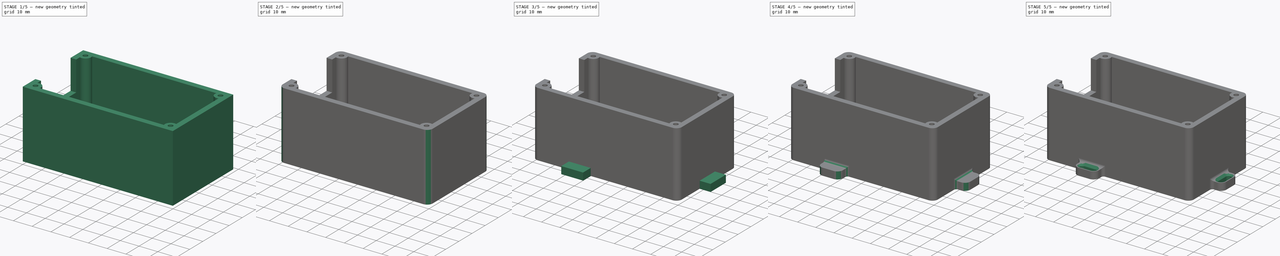
[diagram: build sequence overview — one tinted view per stage of 5, left to right]
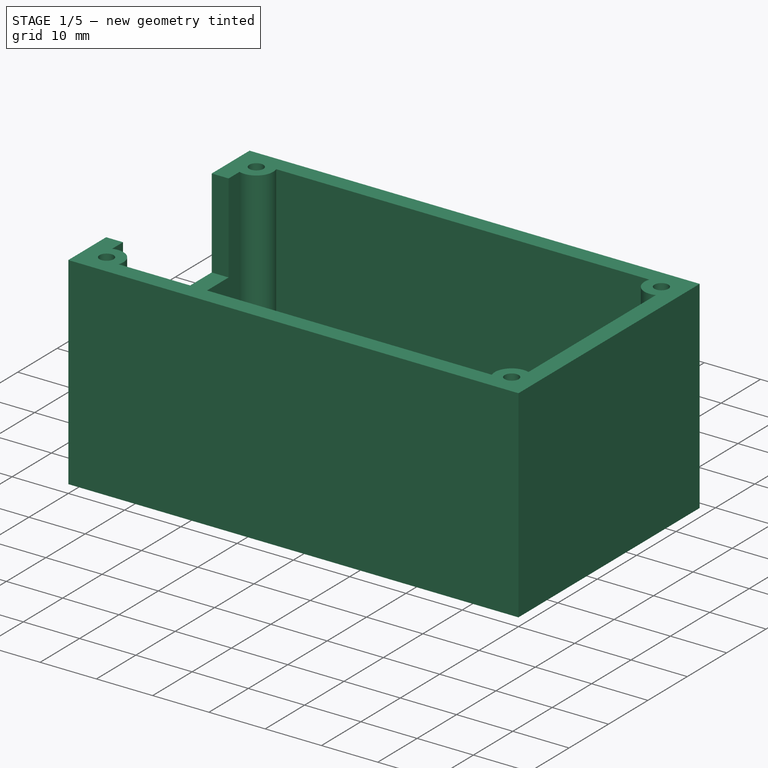
[diagram: stage 1 of 5 — iso view after this stage's code; geometry added in this stage tinted green]
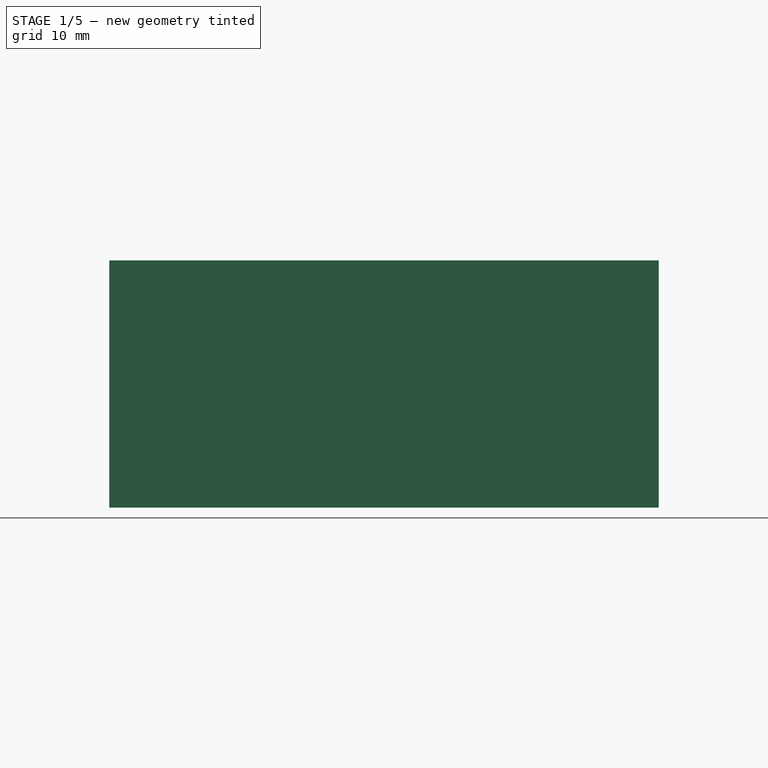
[diagram: stage 1 of 5 — front view after this stage's code; geometry added in this stage tinted green]
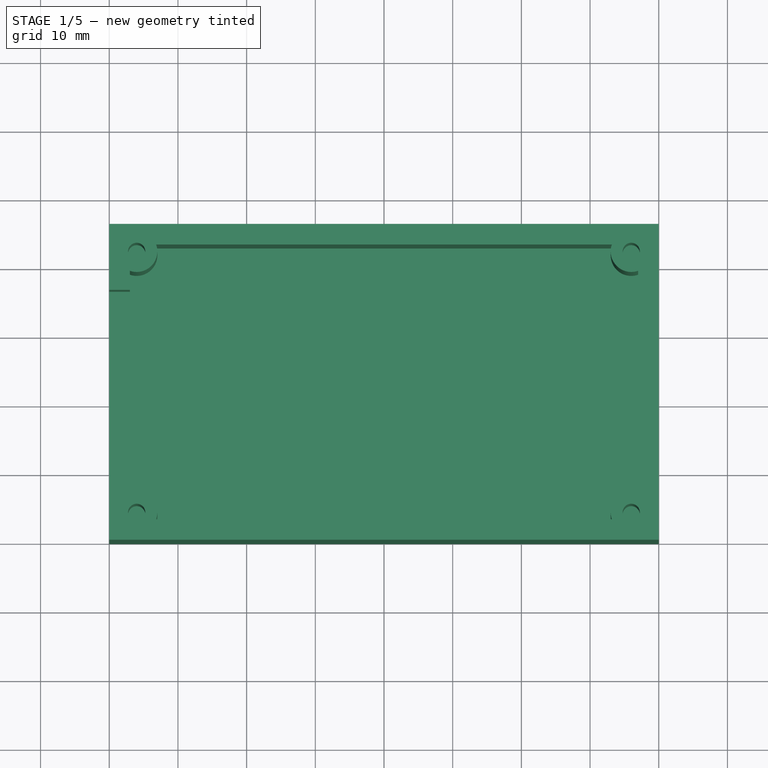
[diagram: stage 1 of 5 — top view after this stage's code; geometry added in this stage tinted green]
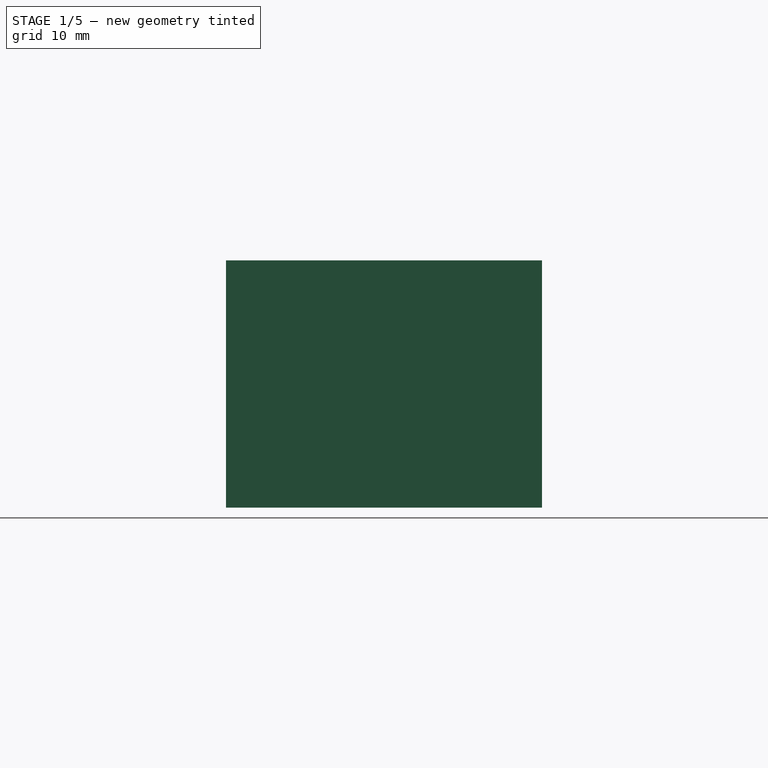
[diagram: stage 1 of 5 — right view after this stage's code; geometry added in this stage tinted green]
FCSTD DOCUMENT  (FreeCAD 0.16R6712 (Git))
Label: gateway_case_botom_0.1
License: All rights reserved
LicenseURL: http://en.wikipedia.org/wiki/All_rights_reserved
objects: PartDesign::Fillet×12, Sketcher::SketchObject×9, PartDesign::Pad×5, PartDesign::Pocket×4, PartDesign::Chamfer×3
note: 42 computed .brp shape members not serialized (recipe doc carries the construction recipe); baked Part::Feature solids carry a one-line shape summary decoded from their .brp

FEATURE [Sketcher::SketchObject] Sketch
  sketch-geometry (4):
    g0: LineSegment StartX=0 StartY=0 StartZ=0 EndX=80 EndY=0 EndZ=0
    g1: LineSegment StartX=80 StartY=0 StartZ=0 EndX=80 EndY=46 EndZ=0
    g2: LineSegment StartX=80 StartY=46 StartZ=0 EndX=0 EndY=46 EndZ=0
    g3: LineSegment StartX=0 StartY=46 StartZ=0 EndX=0 EndY=0 EndZ=0
  constraints (11):
    c: Coincident(g0,g1)
    c: Coincident(g1,g2)
    c: Coincident(g2,g3)
    c: Coincident(g3,g0)
    c: Horizontal(g0)
    c: Horizontal(g2)
    c: Vertical(g1)
    c: Vertical(g3)
    c: Coincident(g0,g-1)
    c: DistanceX(g0,g0) = 80
    c: DistanceY(g3,g3) = 46
FEATURE [PartDesign::Pad] Pad
  Length = 36
  Length2 = 100
  Sketch = -> Sketch
  Type = 0
FEATURE [Sketcher::SketchObject] Sketch001
  Placement = pos=(0,0,36) rot=(0,0,1;0rad)
  Support = -> Pad [Face6]
  sketch-geometry (4):
    g0: LineSegment StartX=3 StartY=43 StartZ=0 EndX=77 EndY=43 EndZ=0
    g1: LineSegment StartX=77 StartY=43 StartZ=0 EndX=77 EndY=3 EndZ=0
    g2: LineSegment StartX=77 StartY=3 StartZ=0 EndX=3 EndY=3 EndZ=0
    g3: LineSegment StartX=3 StartY=3 StartZ=0 EndX=3 EndY=43 EndZ=0
  constraints (12):
    c: Coincident(g0,g1)
    c: Coincident(g1,g2)
    c: Coincident(g2,g3)
    c: Coincident(g3,g0)
    c: Horizontal(g0)
    c: Horizontal(g2)
    c: Vertical(g1)
    c: Vertical(g3)
    c: DistanceX(g-1,g2) = 3
    c: DistanceY(g-1,g2) = 3
    c: DistanceY(g3,g3) = 40
    c: DistanceX(g2,g2) = 74
FEATURE [PartDesign::Pocket] Pocket
  Length = 33
  Sketch = -> Sketch001
  Type = 0
FEATURE [Sketcher::SketchObject] Sketch002
  Placement = pos=(0,0,36) rot=(0,0,1;0rad)
  Support = -> Pocket [Face5]
  sketch-geometry (4):
    g0: LineSegment StartX=0 StartY=36.4 StartZ=0 EndX=3 EndY=36.4 EndZ=0
    g1: LineSegment StartX=3 StartY=36.4 StartZ=0 EndX=3 EndY=9.6 EndZ=0
    g2: LineSegment StartX=3 StartY=9.6 StartZ=0 EndX=0 EndY=9.6 EndZ=0
    g3: LineSegment StartX=0 StartY=9.6 StartZ=0 EndX=0 EndY=36.4 EndZ=0
  constraints (12):
    c: Coincident(g0,g1)
    c: Coincident(g1,g2)
    c: Coincident(g2,g3)
    c: Coincident(g3,g0)
    c: Horizontal(g0)
    c: Horizontal(g2)
    c: Vertical(g1)
    c: Vertical(g3)
    c: Tangent(g3,g-2)
    c: DistanceX(g2,g2) = 3
    c: DistanceY(g-1,g2) = 9.6
    c: DistanceY(g3,g3) = 26.8
FEATURE [PartDesign::Pocket] Pocket001
  Length = 15.9
  Sketch = -> Sketch002
  Type = 0
FEATURE [Sketcher::SketchObject] Sketch003
  Placement = pos=(0,0,3) rot=(0,0,1;0rad)
  Support = -> Pocket001 [Face14]
  sketch-geometry (4):
    g0: Circle CenterX=4 CenterY=42 CenterZ=0 NormalX=0 NormalY=0 NormalZ=1 Radius=3
    g1: Circle CenterX=4 CenterY=4 CenterZ=0 NormalX=0 NormalY=0 NormalZ=1 Radius=3
    g2: Circle CenterX=76 CenterY=4 CenterZ=0 NormalX=0 NormalY=0 NormalZ=1 Radius=3
    g3: Circle CenterX=76 CenterY=42 CenterZ=0 NormalX=0 NormalY=0 NormalZ=1 Radius=3
  constraints (12):
    c: Radius(g1) = 3
    c: Equal(g1,g2)
    c: Equal(g2,g3)
    c: Equal(g3,g0)
    c: DistanceX(g-1,g1) = 4
    c: DistanceY(g-1,g1) = 4
    c: DistanceY(g-1,g0) = 42
    c: DistanceY(g1,g2) = 0
    c: DistanceX(g1,g0) = 0
    c: DistanceX(g-1,g2) = 76
    c: DistanceX(g3,g2) = 0
    c: DistanceY(g3,g0) = 0
FEATURE [PartDesign::Pad] Pad001
  Length = 33
  Length2 = 100
  Sketch = -> Sketch003
  Type = 0
FEATURE [Sketcher::SketchObject] Sketch006
  Placement = pos=(0,0,36) rot=(0,0,1;0rad)
  Support = -> Pad001 [Face21]
  sketch-geometry (4):
    g0: Circle CenterX=4 CenterY=42 CenterZ=0 NormalX=0 NormalY=0 NormalZ=1 Radius=1.25
    g1: Circle CenterX=4 CenterY=4 CenterZ=0 NormalX=0 NormalY=0 NormalZ=1 Radius=1.25
    g2: Circle CenterX=76 CenterY=4 CenterZ=0 NormalX=0 NormalY=0 NormalZ=1 Radius=1.25
    g3: Circle CenterX=76 CenterY=42 CenterZ=0 NormalX=0 NormalY=0 NormalZ=1 Radius=1.25
  constraints (12):
    c: Radius(g0) = 1.25
    c: Equal(g0,g1)
    c: Equal(g1,g2)
    c: Equal(g2,g3)
    c: DistanceY(g-1,g1) = 4
    c: DistanceX(g-1,g1) = 4
    c: DistanceY(g1,g2) = 0
    c: DistanceX(g-1,g2) = 76
    c: DistanceX(g3,g2) = 0
    c: DistanceX(g1,g0) = 0
    c: DistanceY(g-1,g0) = 42
    c: DistanceY(g3,g0) = 0
FEATURE [PartDesign::Pocket] Pocket002
  Length = 20
  Sketch = -> Sketch006
  Type = 0
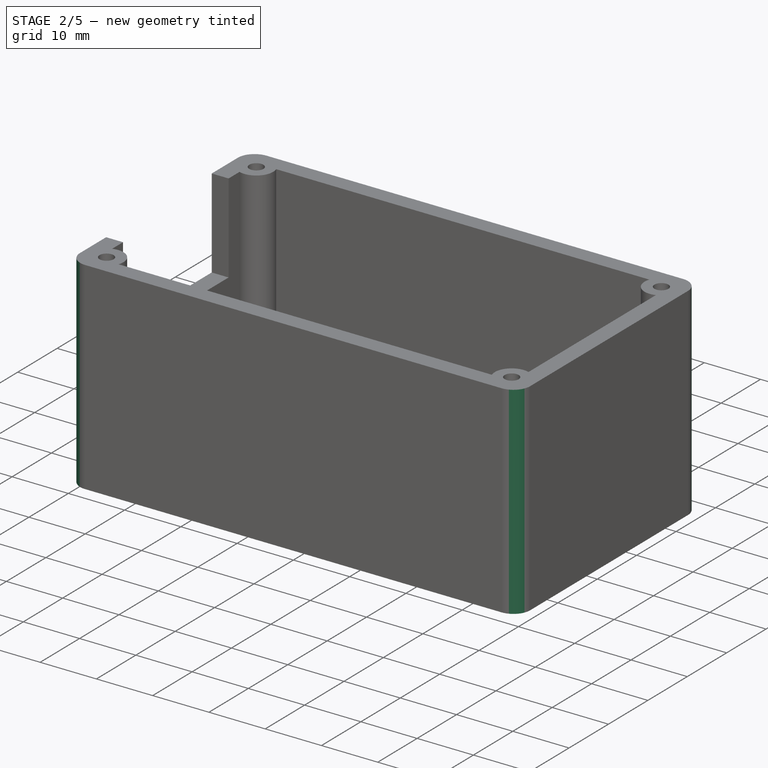
[diagram: stage 2 of 5 — iso view after this stage's code; geometry added in this stage tinted green]
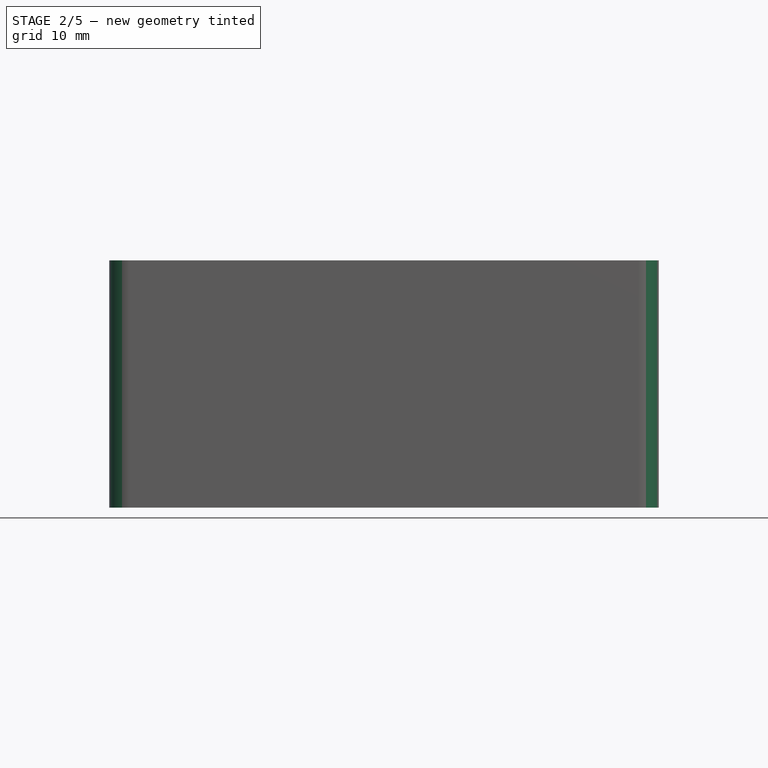
[diagram: stage 2 of 5 — front view after this stage's code; geometry added in this stage tinted green]
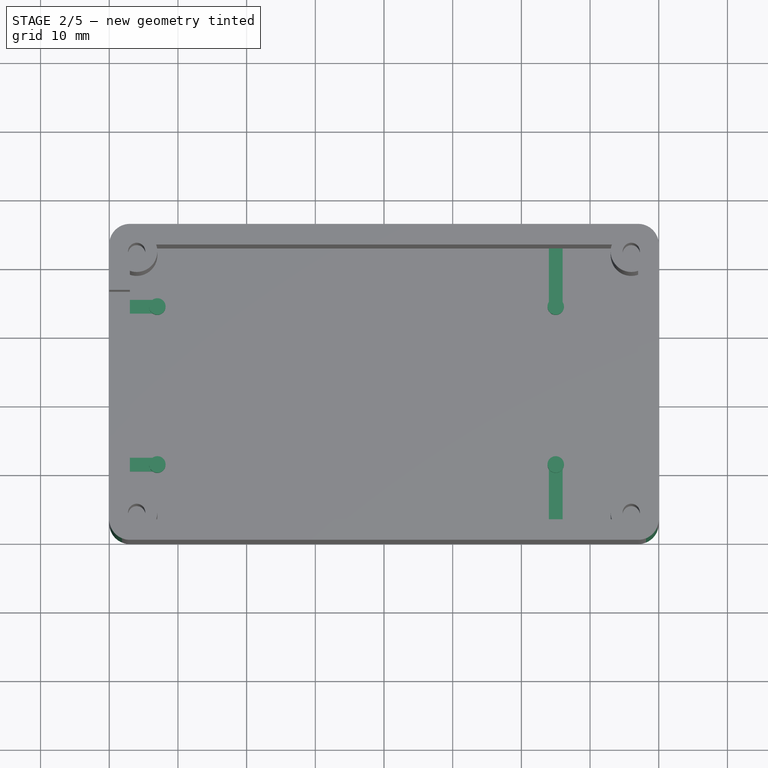
[diagram: stage 2 of 5 — top view after this stage's code; geometry added in this stage tinted green]
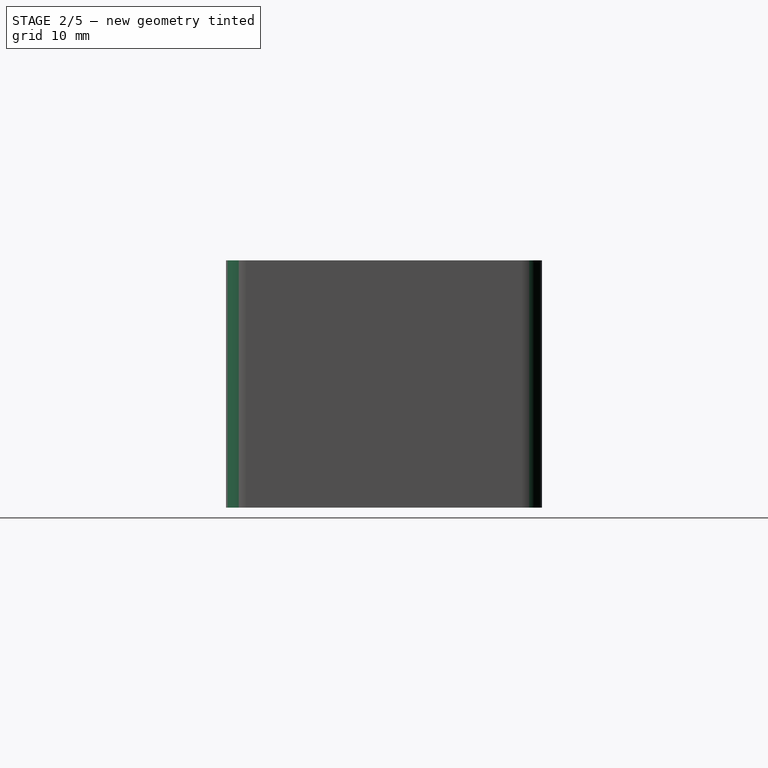
[diagram: stage 2 of 5 — right view after this stage's code; geometry added in this stage tinted green]
FEATURE [Sketcher::SketchObject] Sketch007
  Placement = pos=(0,0,3) rot=(0,0,1;0rad)
  Support = -> Pocket002 [Face19]
  sketch-geometry (4):
    g0: Circle CenterX=7 CenterY=11.5 CenterZ=0 NormalX=0 NormalY=0 NormalZ=1 Radius=1.2
    g1: Circle CenterX=7 CenterY=34.5 CenterZ=0 NormalX=0 NormalY=0 NormalZ=1 Radius=1.2
    g2: Circle CenterX=65 CenterY=34.5 CenterZ=0 NormalX=0 NormalY=0 NormalZ=1 Radius=1.2
    g3: Circle CenterX=65 CenterY=11.5 CenterZ=0 NormalX=0 NormalY=0 NormalZ=1 Radius=1.2
  constraints (12):
    c: Radius(g0) = 1.2
    c: Equal(g0,g1)
    c: Equal(g1,g2)
    c: Equal(g2,g3)
    c: DistanceX(g0,g3) = 58
    c: DistanceY(g0,g3) = 0
    c: DistanceX(g1,g0) = 0
    c: DistanceX(g0,g2) = 58
    c: DistanceY(g0,g1) = 23
    c: DistanceY(g1,g2) = 0
    c: DistanceY(g-1,g0) = 11.5
    c: DistanceX(g-1,g0) = 7
FEATURE [PartDesign::Pad] Pad002
  Length = 3
  Length2 = 100
  Sketch = -> Sketch007
  Type = 0
FEATURE [Sketcher::SketchObject] Sketch008
  Placement = pos=(0,0,3) rot=(0,0,1;0rad)
  Support = -> Pad002 [Face19]
  sketch-geometry (16):
    g0: LineSegment StartX=3 StartY=35.5 StartZ=0 EndX=6.5 EndY=35.5 EndZ=0
    g1: LineSegment StartX=6.5 StartY=35.5 StartZ=0 EndX=6.5 EndY=33.5 EndZ=0
    g2: LineSegment StartX=6.5 StartY=33.5 StartZ=0 EndX=3 EndY=33.5 EndZ=0
    g3: LineSegment StartX=3 StartY=33.5 StartZ=0 EndX=3 EndY=35.5 EndZ=0
    g4: LineSegment StartX=3 StartY=12.5 StartZ=0 EndX=6.5 EndY=12.5 EndZ=0
    g5: LineSegment StartX=6.5 StartY=12.5 StartZ=0 EndX=6.5 EndY=10.5 EndZ=0
    g6: LineSegment StartX=6.5 StartY=10.5 StartZ=0 EndX=3 EndY=10.5 EndZ=0
    g7: LineSegment StartX=3 StartY=10.5 StartZ=0 EndX=3 EndY=12.5 EndZ=0
    g8: LineSegment StartX=64 StartY=43 StartZ=0 EndX=66 EndY=43 EndZ=0
    g9: LineSegment StartX=66 StartY=43 StartZ=0 EndX=66 EndY=35 EndZ=0
    g10: LineSegment StartX=66 StartY=35 StartZ=0 EndX=64 EndY=35 EndZ=0
    g11: LineSegment StartX=64 StartY=35 StartZ=0 EndX=64 EndY=43 EndZ=0
    g12: LineSegment StartX=64 StartY=11 StartZ=0 EndX=66 EndY=11 EndZ=0
    g13: LineSegment StartX=66 StartY=11 StartZ=0 EndX=66 EndY=3 EndZ=0
    g14: LineSegment StartX=66 StartY=3 StartZ=0 EndX=64 EndY=3 EndZ=0
    g15: LineSegment StartX=64 StartY=3 StartZ=0 EndX=64 EndY=11 EndZ=0
  constraints (48):
    c: Coincident(g0,g1)
    c: Coincident(g1,g2)
    c: Coincident(g2,g3)
    c: Coincident(g3,g0)
    c: Horizontal(g0)
    c: Horizontal(g2)
    c: Vertical(g1)
    c: Vertical(g3)
    c: Coincident(g4,g5)
    c: Coincident(g5,g6)
    c: Coincident(g6,g7)
    c: Coincident(g7,g4)
    c: Horizontal(g4)
    c: Horizontal(g6)
    c: Vertical(g5)
    c: Vertical(g7)
    c: Coincident(g8,g9)
    c: Coincident(g9,g10)
    c: Coincident(g10,g11)
    c: Coincident(g11,g8)
    c: Horizontal(g8)
    c: Horizontal(g10)
    c: Vertical(g9)
    c: Vertical(g11)
    c: Coincident(g12,g13)
    c: Coincident(g13,g14)
    c: Coincident(g14,g15)
    c: Coincident(g15,g12)
    c: Horizontal(g12)
    c: Horizontal(g14)
    c: Vertical(g13)
    c: Vertical(g15)
    c: DistanceX(g2,g2) = 3.5
    c: DistanceY(g3,g3) = 2
    c: DistanceX(g-1,g2) = 3
    c: DistanceY(g-1,g2) = 33.5
    c: Equal(g2,g6)
    c: Equal(g7,g12)
    c: Equal(g12,g8)
    c: DistanceX(g-1,g6) = 3
    c: DistanceY(g-1,g6) = 10.5
    c: DistanceY(g11,g11) = 8
    c: DistanceX(g-1,g8) = 64
    c: DistanceX(g8,g12) = 0
    c: Equal(g9,g13)
    c: DistanceY(g-1,g8) = 43
    c: DistanceY(g-1,g14) = 3
    c: Equal(g12,g3)
FEATURE [PartDesign::Pad] Pad003
  Length = 1
  Length2 = 100
  Sketch = -> Sketch008
  Type = 0
FEATURE [PartDesign::Fillet] Fillet
  Base = -> Pad003 [Edge2]
  Radius = 3
FEATURE [PartDesign::Fillet] Fillet001
  Base = -> Fillet [Edge32]
  Radius = 3
FEATURE [PartDesign::Fillet] Fillet002
  Base = -> Fillet001 [Edge16,Edge14]
  Radius = 3
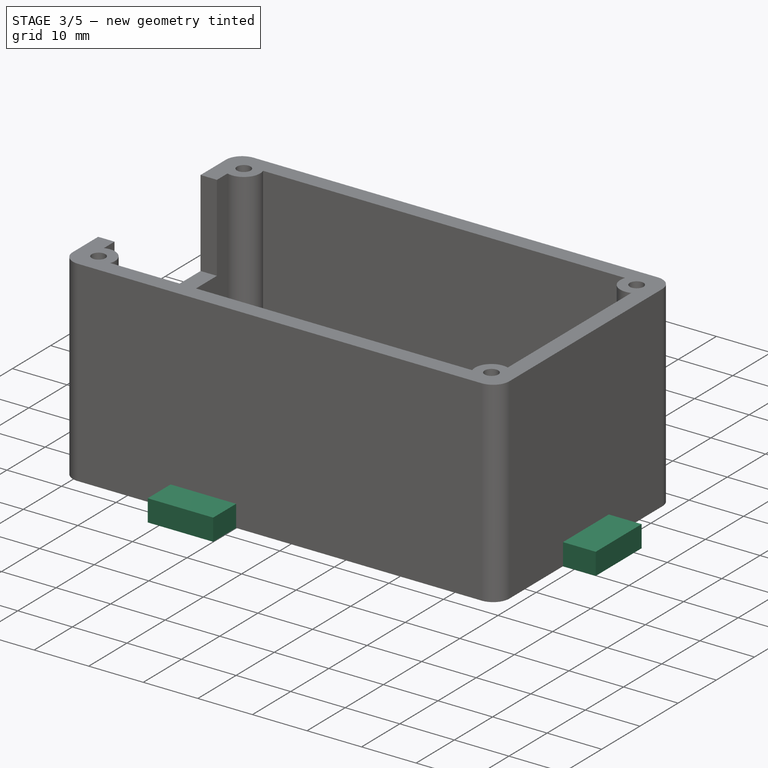
[diagram: stage 3 of 5 — iso view after this stage's code; geometry added in this stage tinted green]
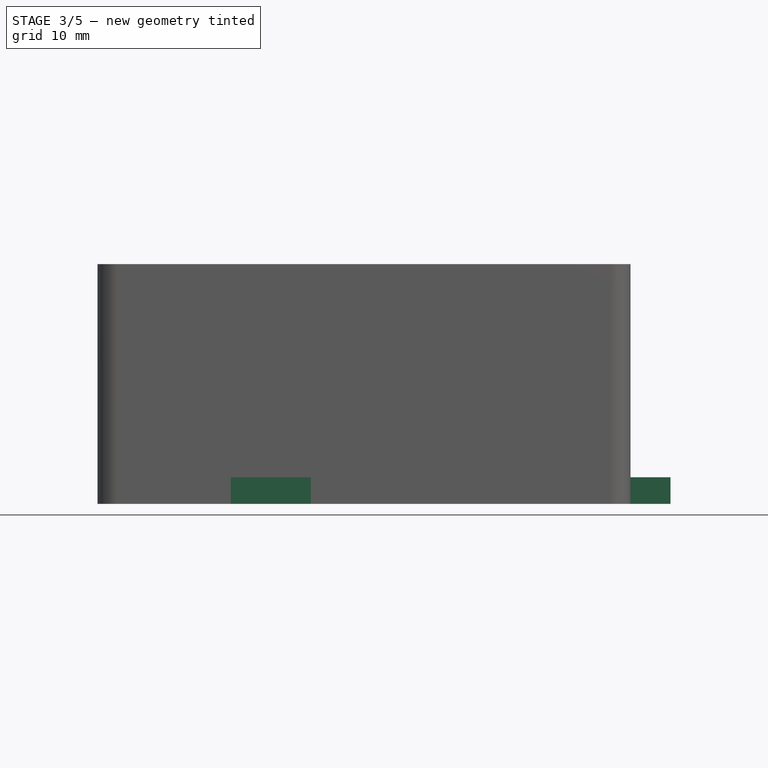
[diagram: stage 3 of 5 — front view after this stage's code; geometry added in this stage tinted green]
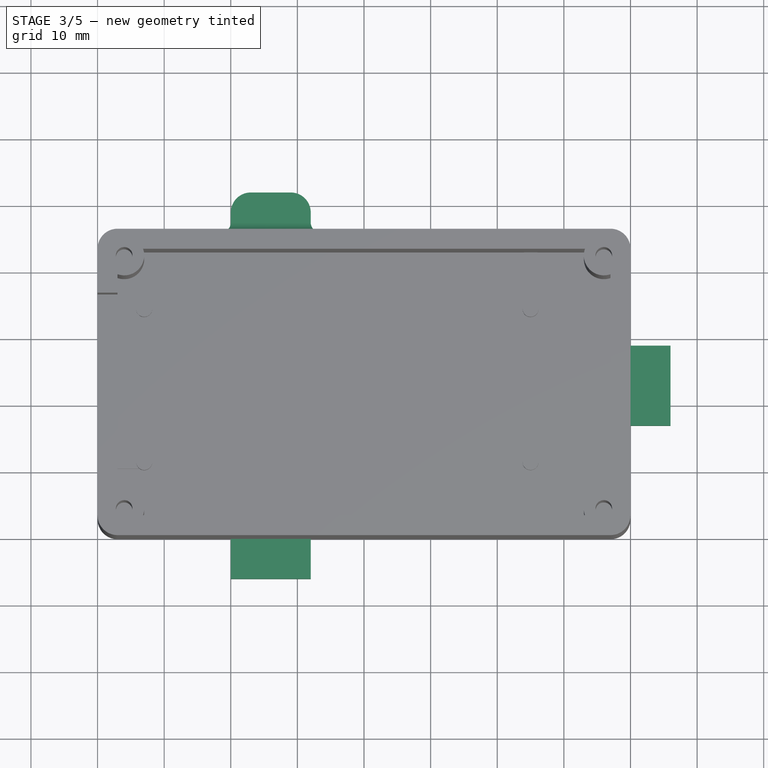
[diagram: stage 3 of 5 — top view after this stage's code; geometry added in this stage tinted green]
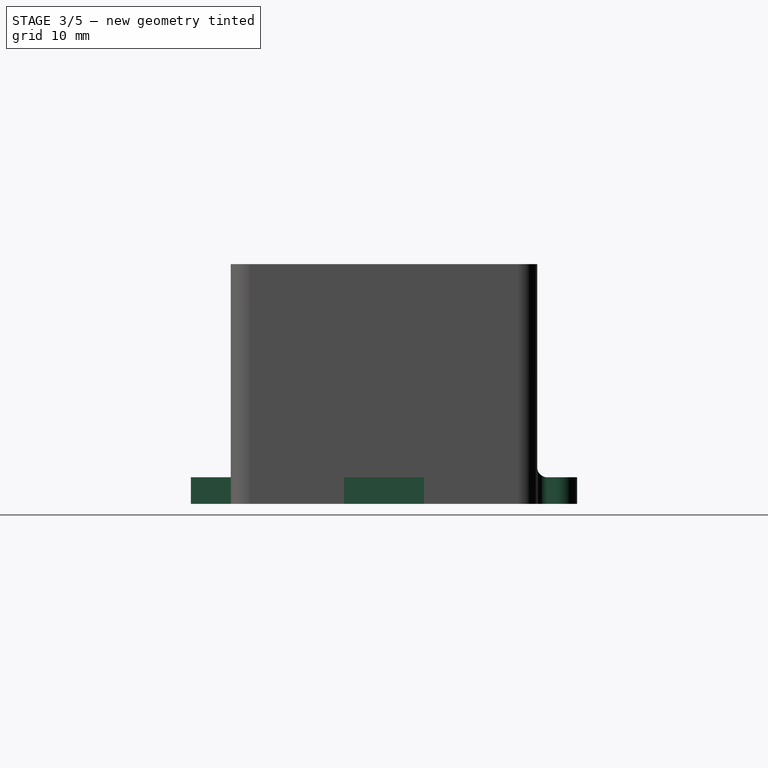
[diagram: stage 3 of 5 — right view after this stage's code; geometry added in this stage tinted green]
FEATURE [Sketcher::SketchObject] Sketch009
  Placement = pos=(0,0,0) rot=(1,0,0;3.14159rad)
  Support = -> Fillet002 [Face1]
  sketch-geometry (12):
    g0: LineSegment StartX=20 StartY=6 StartZ=0 EndX=32 EndY=6 EndZ=0
    g1: LineSegment StartX=32 StartY=6 StartZ=0 EndX=32 EndY=0 EndZ=0
    g2: LineSegment StartX=32 StartY=0 StartZ=0 EndX=20 EndY=0 EndZ=0
    g3: LineSegment StartX=20 StartY=0 StartZ=0 EndX=20 EndY=6 EndZ=0
    g4: LineSegment StartX=80 StartY=-17 StartZ=0 EndX=86 EndY=-17 EndZ=0
    g5: LineSegment StartX=86 StartY=-17 StartZ=0 EndX=86 EndY=-29 EndZ=0
    g6: LineSegment StartX=86 StartY=-29 StartZ=0 EndX=80 EndY=-29 EndZ=0
    g7: LineSegment StartX=80 StartY=-29 StartZ=0 EndX=80 EndY=-17 EndZ=0
    g8: LineSegment StartX=20 StartY=-46 StartZ=0 EndX=32 EndY=-46 EndZ=0
    g9: LineSegment StartX=32 StartY=-46 StartZ=0 EndX=32 EndY=-52 EndZ=0
    g10: LineSegment StartX=32 StartY=-52 StartZ=0 EndX=20 EndY=-52 EndZ=0
    g11: LineSegment StartX=20 StartY=-52 StartZ=0 EndX=20 EndY=-46 EndZ=0
  constraints (36):
    c: Coincident(g0,g1)
    c: Coincident(g1,g2)
    c: Coincident(g2,g3)
    c: Coincident(g3,g0)
    c: Horizontal(g0)
    c: Horizontal(g2)
    c: Vertical(g1)
    c: Vertical(g3)
    c: PointOnObject(g1,g-1)
    c: Coincident(g4,g5)
    c: Coincident(g5,g6)
    c: Coincident(g6,g7)
    c: Coincident(g7,g4)
    c: Horizontal(g4)
    c: Horizontal(g6)
    c: Vertical(g5)
    c: Vertical(g7)
    c: Coincident(g8,g9)
    c: Coincident(g9,g10)
    c: Coincident(g10,g11)
    c: Coincident(g11,g8)
    c: Horizontal(g8)
    c: Horizontal(g10)
    c: Vertical(g9)
    c: Vertical(g11)
    c: DistanceX(g2,g2) = 12
    c: Equal(g2,g8)
    c: Equal(g8,g7)
    c: DistanceY(g3,g3) = 6
    c: Equal(g3,g11)
    c: Equal(g11,g4)
    c: DistanceX(g-1,g2) = 20
    c: DistanceX(g2,g8) = 0
    c: DistanceY(g8,g-1) = 46
    c: DistanceX(g-1,g4) = 80
    c: DistanceY(g4,g-1) = 17
FEATURE [PartDesign::Pad] Pad004
  Length = 4
  Length2 = 100
  Reversed = true
  Sketch = -> Sketch009
  Type = 0
FEATURE [PartDesign::Fillet] Fillet003
  Base = -> Pad004 [Edge24,Edge23]
  Radius = 1.5
FEATURE [PartDesign::Fillet] Fillet004
  Base = -> Fillet003 [Edge75,Edge74]
  Radius = 3
FEATURE [PartDesign::Fillet] Fillet005
  Base = -> Fillet004 [Edge36]
  Radius = 1.5
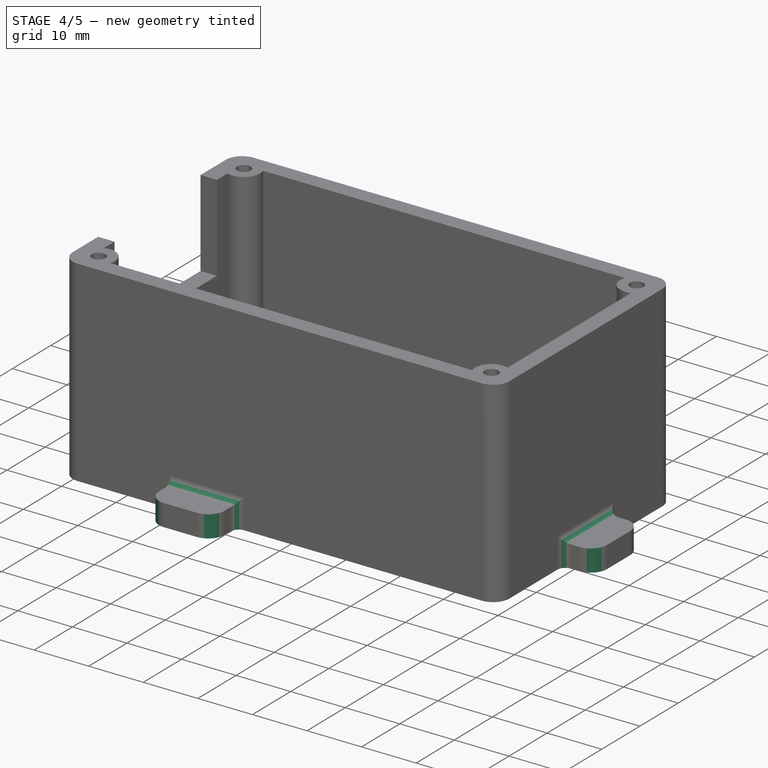
[diagram: stage 4 of 5 — iso view after this stage's code; geometry added in this stage tinted green]
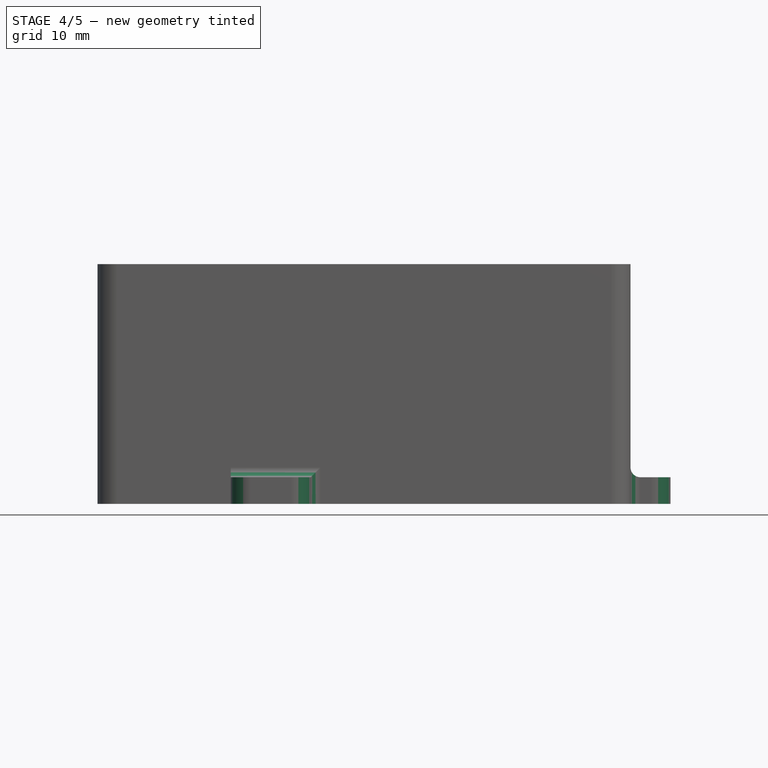
[diagram: stage 4 of 5 — front view after this stage's code; geometry added in this stage tinted green]
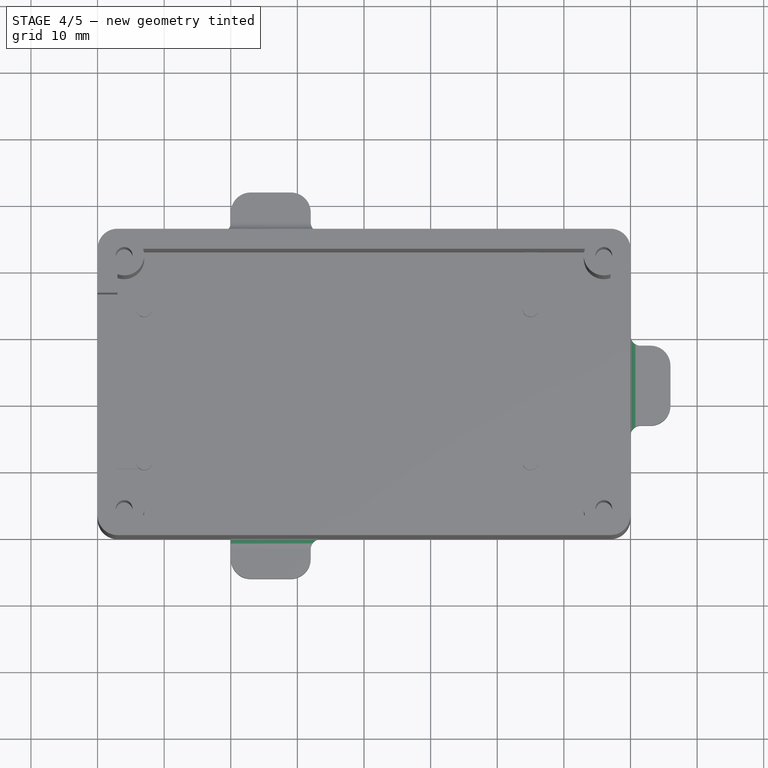
[diagram: stage 4 of 5 — top view after this stage's code; geometry added in this stage tinted green]
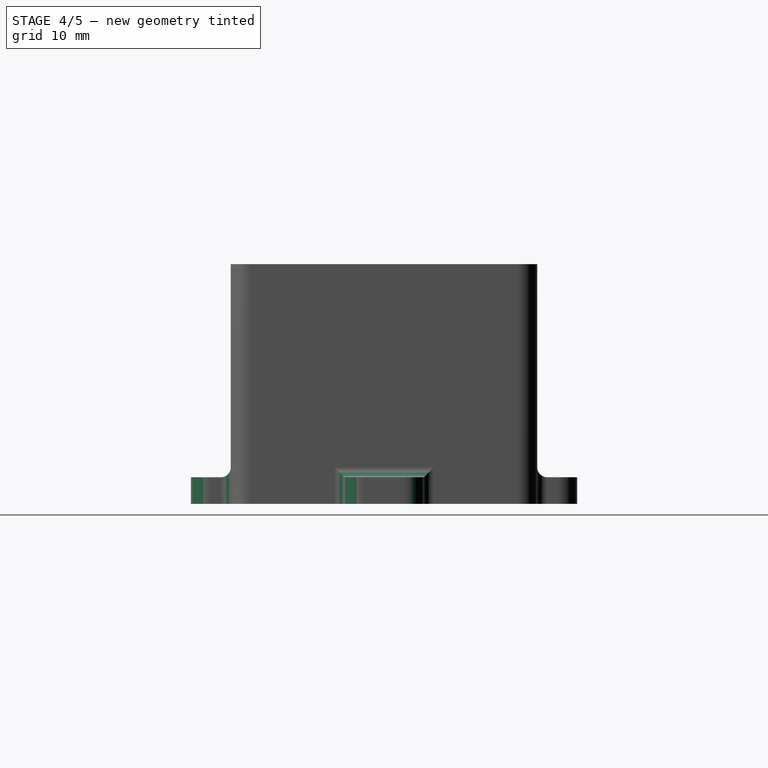
[diagram: stage 4 of 5 — right view after this stage's code; geometry added in this stage tinted green]
FEATURE [PartDesign::Fillet] Fillet006
  Base = -> Fillet005 [Edge68,Edge69]
  Radius = 1.5
FEATURE [PartDesign::Fillet] Fillet007
  Base = -> Fillet006 [Edge24]
  Radius = 1.5
FEATURE [PartDesign::Fillet] Fillet008
  Base = -> Fillet007 [Edge86,Edge88]
  Radius = 3
FEATURE [PartDesign::Fillet] Fillet009
  Base = -> Fillet008 [Edge101,Edge98]
  Radius = 3
FEATURE [PartDesign::Fillet] Fillet010
  Base = -> Fillet009 [Edge35,Edge16]
  Radius = 1.5
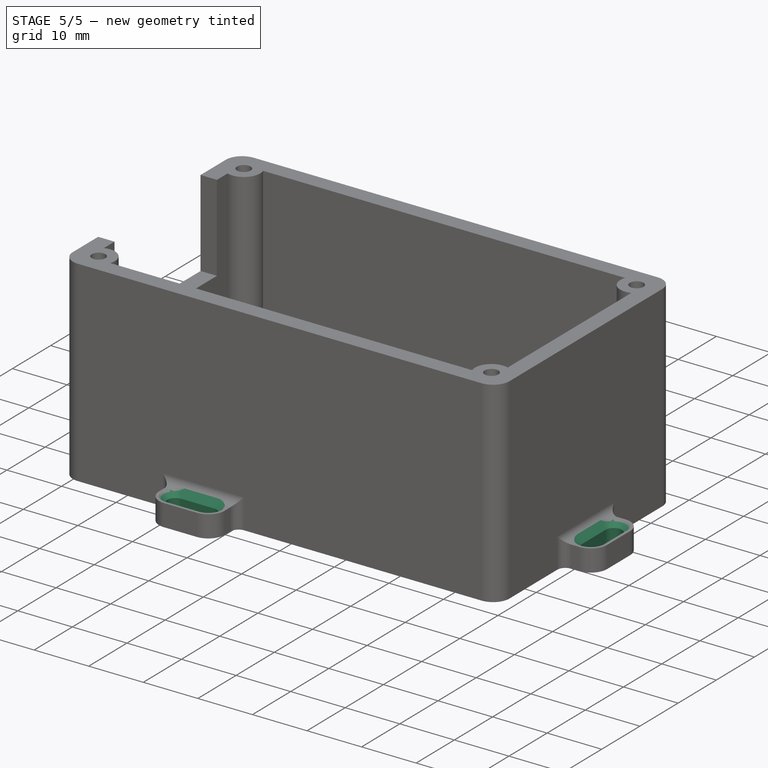
[diagram: stage 5 of 5 — iso view after this stage's code; geometry added in this stage tinted green]
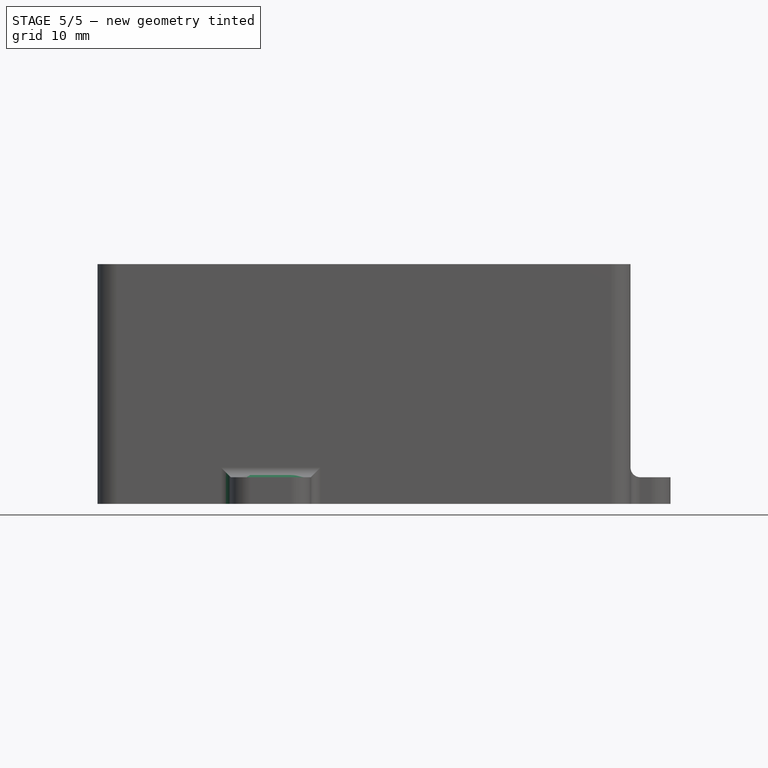
[diagram: stage 5 of 5 — front view after this stage's code; geometry added in this stage tinted green]
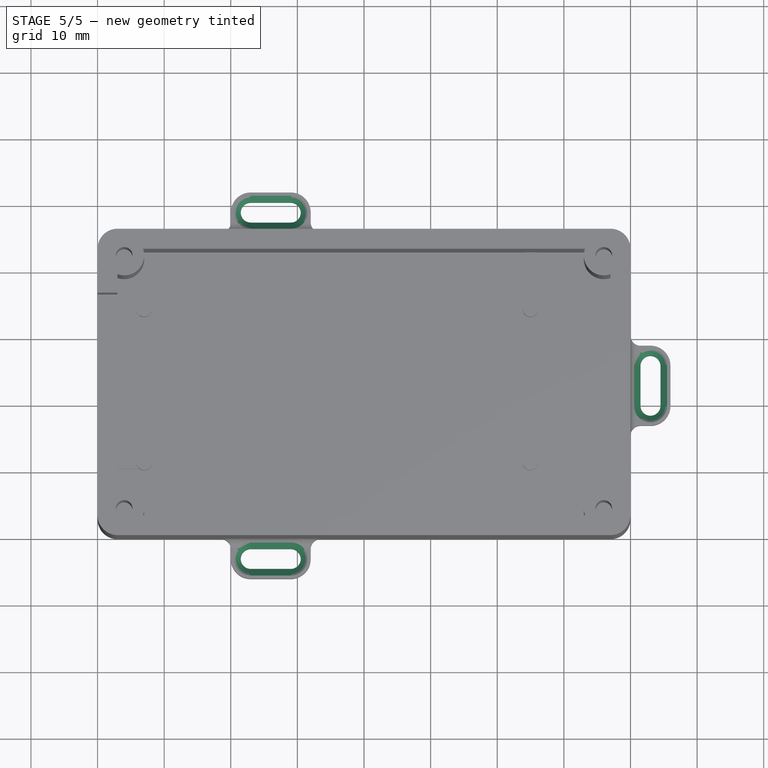
[diagram: stage 5 of 5 — top view after this stage's code; geometry added in this stage tinted green]
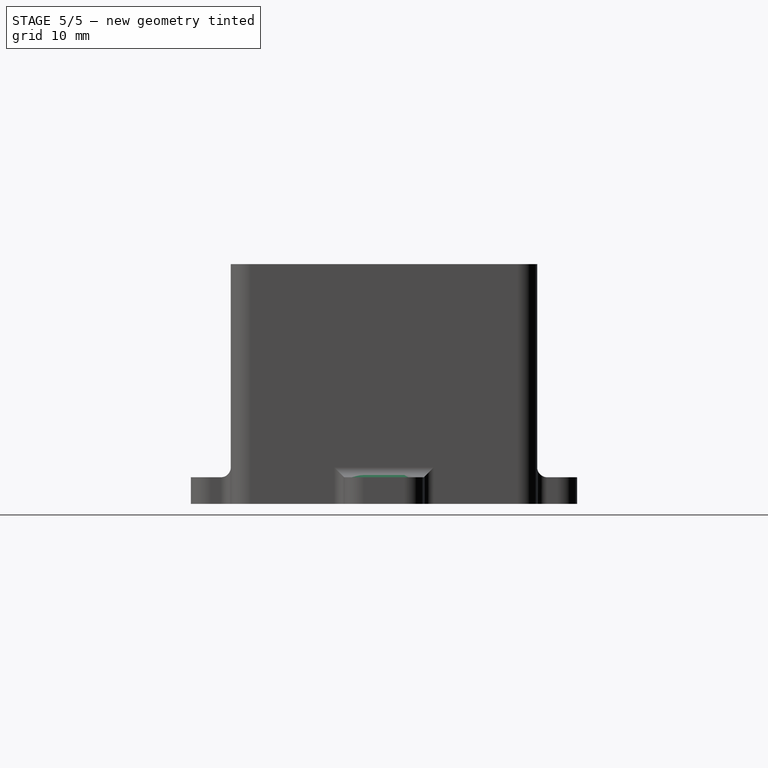
[diagram: stage 5 of 5 — right view after this stage's code; geometry added in this stage tinted green]
FEATURE [PartDesign::Fillet] Fillet011
  Base = -> Fillet010 [Edge40]
  Radius = 1.5
FEATURE [Sketcher::SketchObject] Sketch010
  Placement = pos=(0,0,4) rot=(0,0,1;0rad)
  Support = -> Fillet011 [Face10]
  sketch-geometry (12):
    g0: ArcOfCircle CenterX=23 CenterY=49 CenterZ=0 NormalX=0 NormalY=0 NormalZ=1 Radius=1.5 StartAngle=1.5708 EndAngle=4.71239
    g1: ArcOfCircle CenterX=29 CenterY=49 CenterZ=0 NormalX=0 NormalY=0 NormalZ=1 Radius=1.5 StartAngle=4.71239 EndAngle=7.85398
    g2: LineSegment StartX=23 StartY=47.5 StartZ=0 EndX=29 EndY=47.5 EndZ=0
    g3: LineSegment StartX=23 StartY=50.5 StartZ=0 EndX=29 EndY=50.5 EndZ=0
    g4: ArcOfCircle CenterX=23 CenterY=-3 CenterZ=0 NormalX=0 NormalY=0 NormalZ=1 Radius=1.5 StartAngle=1.5708 EndAngle=4.71239
    g5: ArcOfCircle CenterX=29 CenterY=-3 CenterZ=0 NormalX=0 NormalY=0 NormalZ=1 Radius=1.5 StartAngle=4.71239 EndAngle=7.85398
    g6: LineSegment StartX=23 StartY=-4.5 StartZ=0 EndX=29 EndY=-4.5 EndZ=0
    g7: LineSegment StartX=23 StartY=-1.5 StartZ=0 EndX=29 EndY=-1.5 EndZ=0
    g8: ArcOfCircle CenterX=83 CenterY=26 CenterZ=0 NormalX=0 NormalY=0 NormalZ=1 Radius=1.5 StartAngle=0 EndAngle=3.14159
    g9: ArcOfCircle CenterX=83 CenterY=20 CenterZ=0 NormalX=0 NormalY=0 NormalZ=1 Radius=1.5 StartAngle=3.14159 EndAngle=6.28319
    g10: LineSegment StartX=81.5 StartY=26 StartZ=0 EndX=81.5 EndY=20 EndZ=0
    g11: LineSegment StartX=84.5 StartY=26 StartZ=0 EndX=84.5 EndY=20 EndZ=0
  constraints (30):
    c: Tangent(g0,g3) = 1.5708
    c: Tangent(g0,g2) = -1.5708
    c: Tangent(g2,g1) = -1.5708
    c: Tangent(g3,g1) = 1.5708
    c: Horizontal(g2)
    c: Equal(g0,g1)
    c: Tangent(g4,g7) = 1.5708
    c: Tangent(g4,g6) = -1.5708
    c: Tangent(g6,g5) = -1.5708
    c: Tangent(g7,g5) = 1.5708
    c: Horizontal(g6)
    c: Equal(g4,g5)
    c: Tangent(g8,g11) = 1.5708
    c: Tangent(g8,g10) = -1.5708
    c: Tangent(g10,g9) = -1.5708
    c: Tangent(g11,g9) = 1.5708
    c: Vertical(g10)
    c: Equal(g8,g9)
    c: DistanceX(g2,g2) = 6
    c: Radius(g0) = 1.5
    c: Equal(g2,g7)
    c: Equal(g7,g11)
    c: Equal(g0,g4)
    c: Equal(g4,g9)
    c: DistanceY(g4,g-1) = 1.5
    c: DistanceY(g-1,g0) = 47.5
    c: DistanceX(g-1,g9) = 81.5
    c: DistanceX(g-1,g4) = 23
    c: DistanceX(g4,g0) = 0
    c: DistanceY(g-1,g8) = 26
FEATURE [PartDesign::Pocket] Pocket003
  Length = 4
  Sketch = -> Sketch010
  Type = 0
FEATURE [PartDesign::Chamfer] Chamfer
  Base = -> Pocket003 [Edge151,Edge149,Edge154,Edge135]
  Size = 1
FEATURE [PartDesign::Chamfer] Chamfer001
  Base = -> Chamfer [Edge203,Edge222,Edge217,Edge220]
  Size = 1
FEATURE [PartDesign::Chamfer] Chamfer002
  Base = -> Chamfer001 [Edge251,Edge246,Edge232,Edge249]
  Size = 1
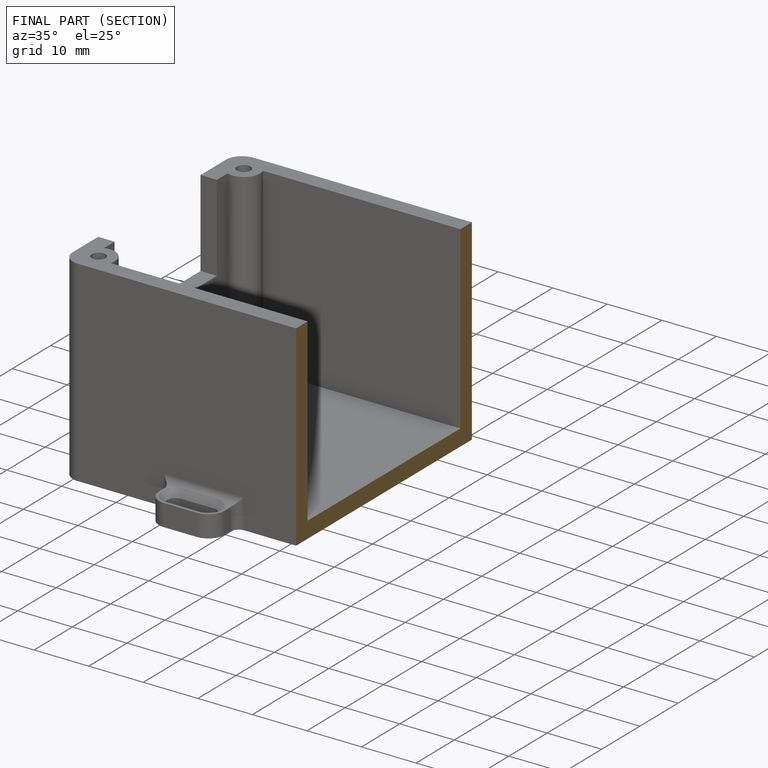
[diagram: finished part — half-section view (interior)]
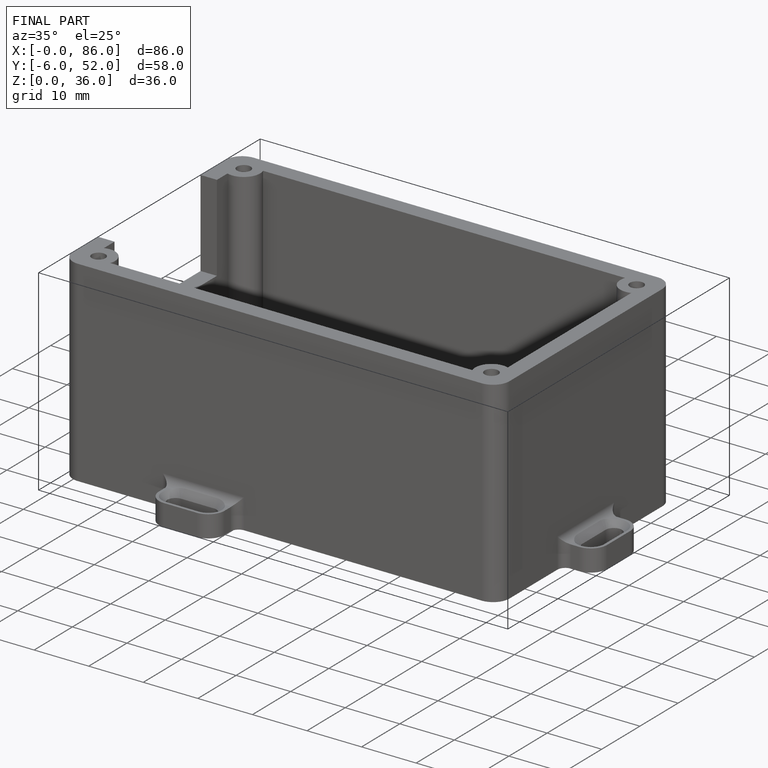
[diagram: finished part — iso view with bounding-box wireframe]
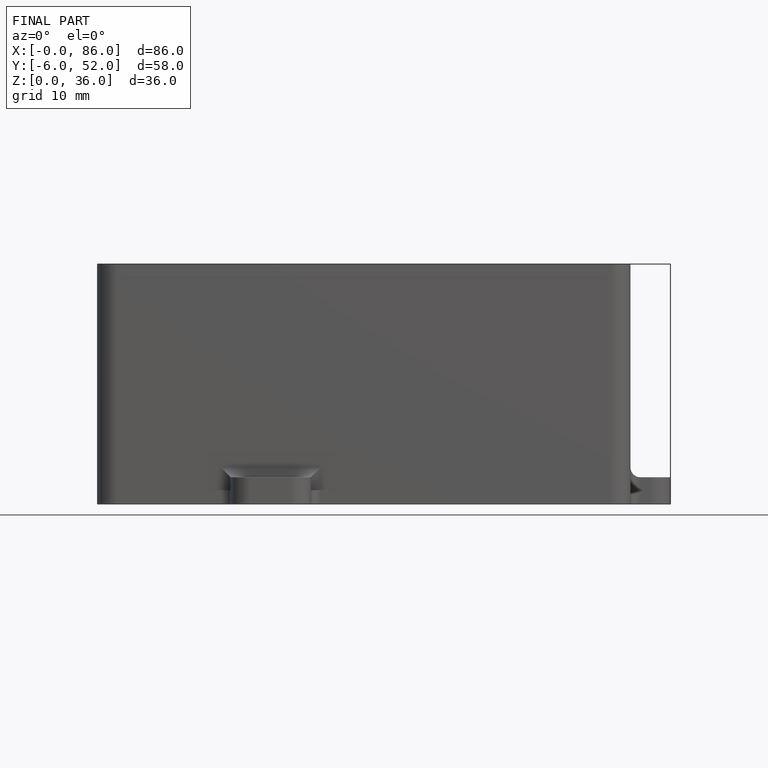
[diagram: finished part — front view with bounding-box wireframe]
